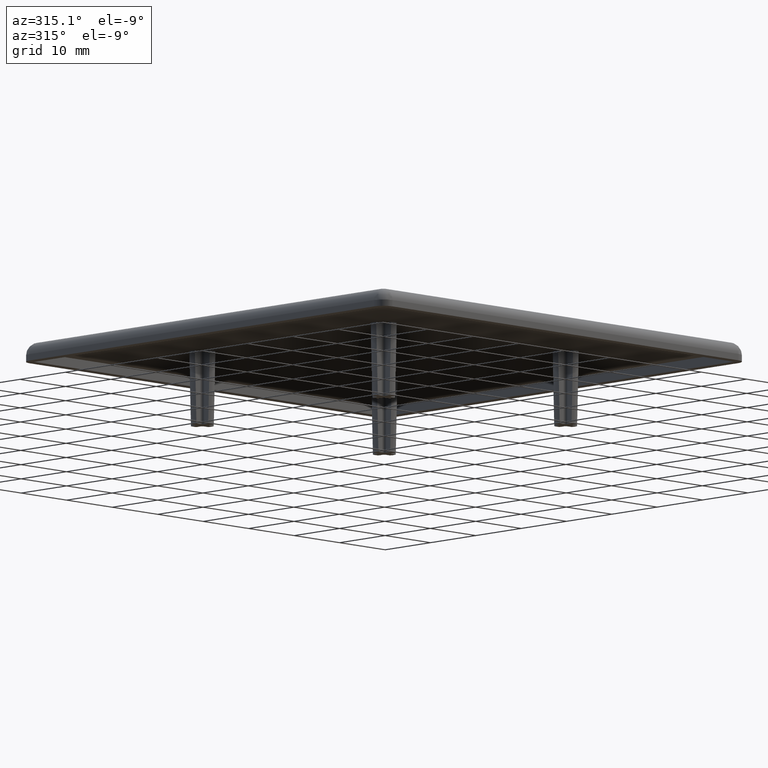
[diagram: clean part render]
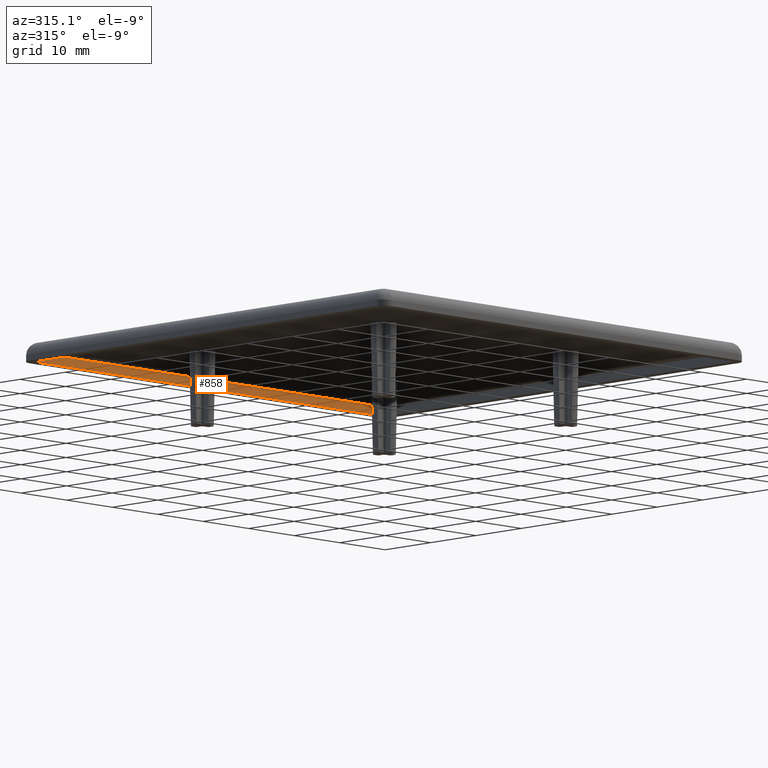
[diagram: same view with one face highlighted and labeled with its STEP entity id]
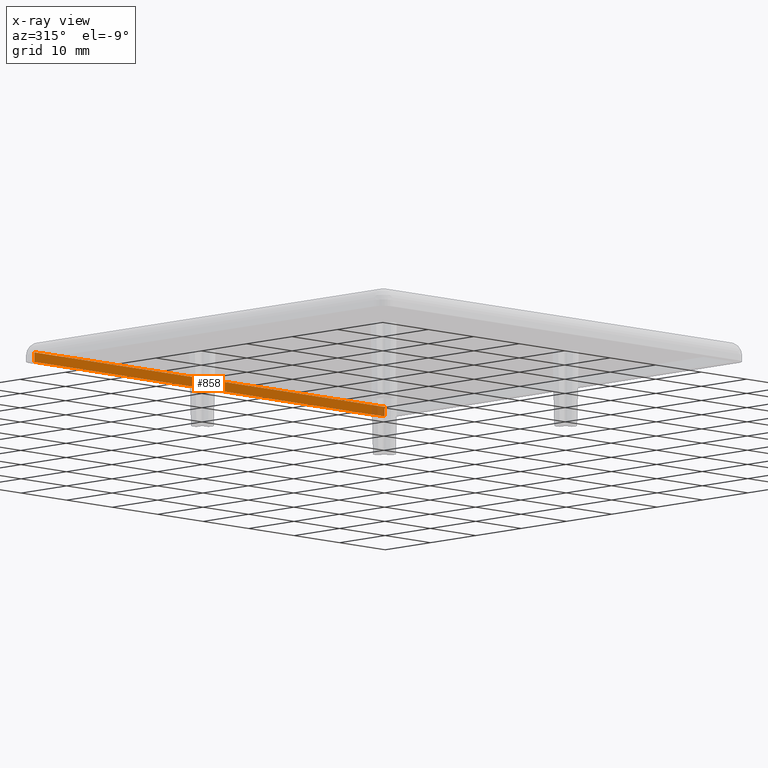
[diagram: x-ray of the same camera — body ghosted, the highlighted face saturated]
A machine part, auxiliary view. The second image highlights one B-rep face of the part: STEP entity #858.
The next image is the same camera in x-ray: the body ghosted, the highlighted face saturated — about 11% of this face is hidden behind the body in this view.
In plain terms, the highlighted planar face has unit normal (0, -1, 0).
Its self-contained STEP definition (entity closure, byte-faithful):
#87=CARTESIAN_POINT('',(38.500000332846071,78.500000332685914,0.0));
#88=VERTEX_POINT('',#87);
#95=CARTESIAN_POINT('',(-38.500000332845957,78.500000332685914,0.0));
#96=VERTEX_POINT('',#95);
#97=CARTESIAN_POINT('',(-38.500000332845957,78.500000332685914,0.0));
#98=DIRECTION('',(1.0,0.0,0.0));
#99=VECTOR('',#98,77.000000665692028);
#100=LINE('',#97,#99);
#101=EDGE_CURVE('',#96,#88,#100,.T.);
#818=CARTESIAN_POINT('',(-38.500000332845957,78.500000332685914,1.500000000000000));
#819=VERTEX_POINT('',#818);
#820=CARTESIAN_POINT('',(-38.500000332845957,78.500000332685914,0.0));
#821=DIRECTION('',(0.0,0.0,1.0));
#822=VECTOR('',#821,1.500000000000000);
#823=LINE('',#820,#822);
#824=EDGE_CURVE('',#96,#819,#823,.T.);
#835=CARTESIAN_POINT('',(-38.500000332845957,78.500000332685914,0.0));
#836=DIRECTION('',(0.0,-1.0,0.0));
#837=DIRECTION('',(1.0,0.0,0.0));
#838=AXIS2_PLACEMENT_3D('',#835,#836,#837);
#839=PLANE('',#838);
#840=ORIENTED_EDGE('',*,*,#824,.F.);
#841=ORIENTED_EDGE('',*,*,#101,.T.);
#842=CARTESIAN_POINT('',(38.500000332846071,78.500000332685914,1.500000000000000));
#843=VERTEX_POINT('',#842);
#844=CARTESIAN_POINT('',(38.500000332846071,78.500000332685914,0.0));
#845=DIRECTION('',(0.0,0.0,1.0));
#846=VECTOR('',#845,1.500000000000000);
#847=LINE('',#844,#846);
#848=EDGE_CURVE('',#88,#843,#847,.T.);
#849=ORIENTED_EDGE('',*,*,#848,.T.);
#850=CARTESIAN_POINT('',(-38.500000332845957,78.500000332685914,1.500000000000000));
#851=DIRECTION('',(1.0,0.0,0.0));
#852=VECTOR('',#851,77.000000665692028);
#853=LINE('',#850,#852);
#854=EDGE_CURVE('',#819,#843,#853,.T.);
#855=ORIENTED_EDGE('',*,*,#854,.F.);
#856=EDGE_LOOP('',(#840,#841,#849,#855));
#857=FACE_OUTER_BOUND('',#856,.T.);
#858=ADVANCED_FACE('',(#857),#839,.T.);